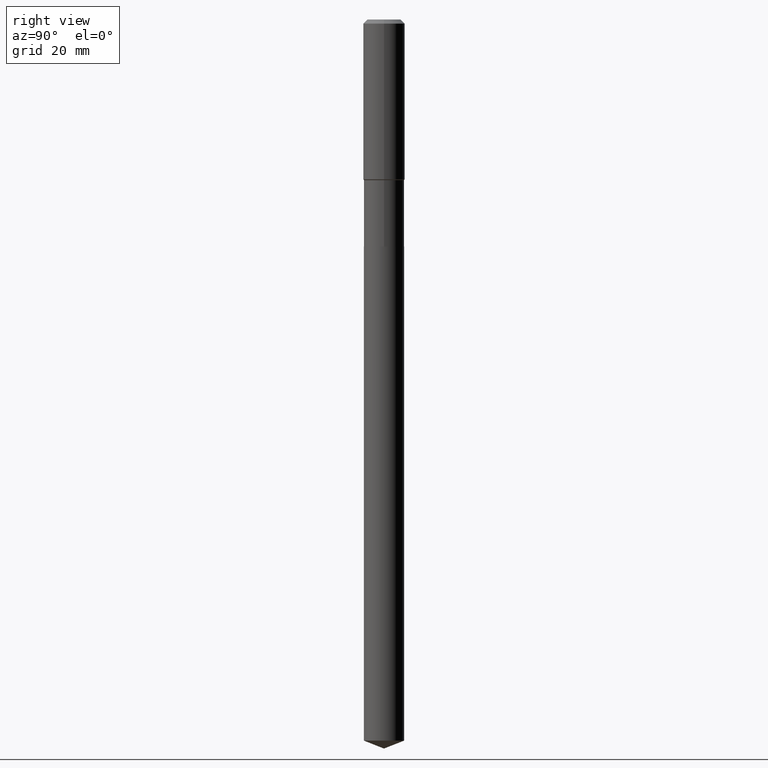
[diagram: clean part render]
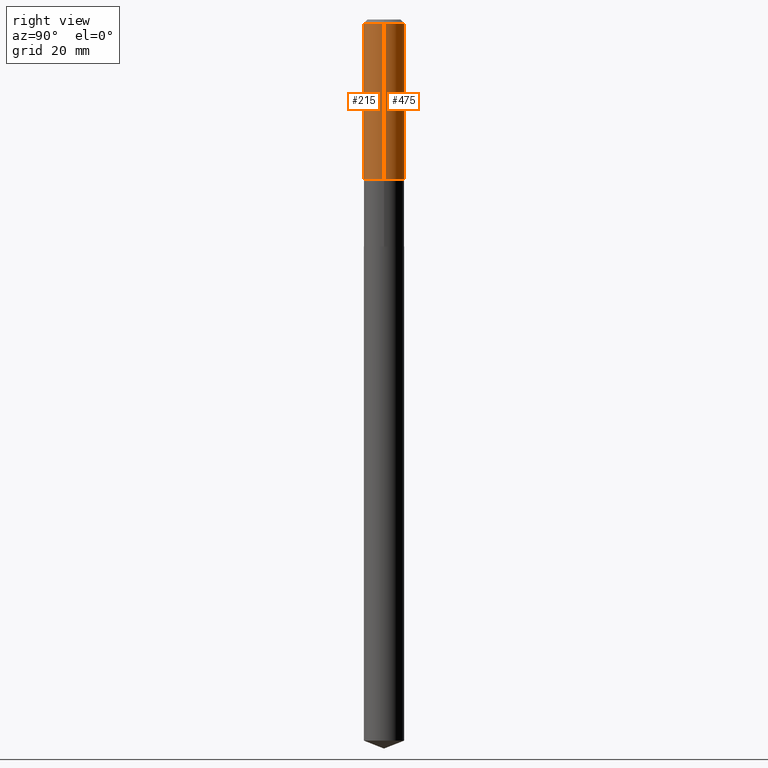
[diagram: same view with one multi-face feature highlighted, each face labeled with its STEP entity id]
A machine part, right view. The highlighted faces form ONE feature: a constant-radius fillet chain: 2 tangent blend faces with common blend radius 5.9995 mm. The faces share edges in the B-rep.
Their STEP definitions:
[1] entity #475 (Cylinder):
#15 = CARTESIAN_POINT ( 'NONE',  ( 0.000000000000000000, 0.000000000000000000, 0.000000000000000000 ) ) ;
#37 = ORIENTED_EDGE ( 'NONE', *, *, #259, .F. ) ;
#40 = FACE_OUTER_BOUND ( 'NONE', #300, .T. ) ;
#42 = CARTESIAN_POINT ( 'NONE',  ( -0.2362000000000001321, 1.678301941865357577E-15, -1.161852468318209457E-29 ) ) ;
#51 = DIRECTION ( 'NONE',  ( 1.000000000000000000, -6.982962677686266711E-15, 4.876176775795936353E-29 ) ) ;
#52 = CYLINDRICAL_SURFACE ( 'NONE', #213, 0.2362000000000001321 ) ;
#60 = EDGE_CURVE ( 'NONE', #362, #296, #121, .T. ) ;
#74 = ORIENTED_EDGE ( 'NONE', *, *, #350, .T. ) ;
#113 = CARTESIAN_POINT ( 'NONE',  ( -0.2362000000000000210, -1.570329412454553848E-15, -0.04724000000000030952 ) ) ;
#116 = CARTESIAN_POINT ( 'NONE',  ( -0.2362000000000002153, -4.654023188327512386E-15, -1.813649999999999984 ) ) ;
#117 = DIRECTION ( 'NONE',  ( 1.000000000000000000, -6.982962677686267499E-15, 0.000000000000000000 ) ) ;
#119 = CARTESIAN_POINT ( 'NONE',  ( 0.2362000000000002153, -7.981700914662367672E-15, -1.813649999999999984 ) ) ;
#121 = LINE ( 'NONE', #274, #127 ) ;
#124 = DIRECTION ( 'NONE',  ( 1.000000000000000000, -6.982962677686266711E-15, 0.000000000000000000 ) ) ;
#127 = VECTOR ( 'NONE', #235, 39.37007874015748143 ) ;
#179 = VECTOR ( 'NONE', #218, 39.37007874015748143 ) ;
#189 = ORIENTED_EDGE ( 'NONE', *, *, #60, .F. ) ;
#191 = CARTESIAN_POINT ( 'NONE',  ( 4.435224500337672740E-29, -6.332325130192871147E-15, -1.813649999999999984 ) ) ;
#213 = AXIS2_PLACEMENT_3D ( 'NONE', #15, #423, #51 ) ;
#218 = DIRECTION ( 'NONE',  ( -2.445468806185136877E-29, 3.491481338843145188E-15, 1.000000000000000000 ) ) ;
#235 = DIRECTION ( 'NONE',  ( -2.445468806185136877E-29, 3.491481338843145188E-15, 1.000000000000000000 ) ) ;
#259 = EDGE_CURVE ( 'NONE', #296, #277, #438, .T. ) ;
#274 = CARTESIAN_POINT ( 'NONE',  ( 0.2362000000000001321, -1.649375784469497117E-15, 1.151752954443000789E-29 ) ) ;
#277 = VERTEX_POINT ( 'NONE', #113 ) ;
#296 = VERTEX_POINT ( 'NONE', #305 ) ;
#300 = EDGE_LOOP ( 'NONE', ( #74, #311, #37, #189 ) ) ;
#304 = AXIS2_PLACEMENT_3D ( 'NONE', #191, #345, #124 ) ;
#305 = CARTESIAN_POINT ( 'NONE',  ( 0.2362000000000000210, -1.814313362916447834E-15, -0.04724000000000030952 ) ) ;
#311 = ORIENTED_EDGE ( 'NONE', *, *, #333, .T. ) ;
#333 = EDGE_CURVE ( 'NONE', #415, #277, #379, .T. ) ;
#345 = DIRECTION ( 'NONE',  ( -2.445468806185136597E-29, 3.491481338843145583E-15, 1.000000000000000000 ) ) ;
#350 = EDGE_CURVE ( 'NONE', #362, #415, #394, .T. ) ;
#362 = VERTEX_POINT ( 'NONE', #119 ) ;
#379 = LINE ( 'NONE', #42, #179 ) ;
#394 = CIRCLE ( 'NONE', #304, 0.2362000000000002153 ) ;
#412 = CARTESIAN_POINT ( 'NONE',  ( 1.155239464041866207E-30, -1.649375784469512845E-16, -0.04724000000000030952 ) ) ;
#415 = VERTEX_POINT ( 'NONE', #116 ) ;
#418 = AXIS2_PLACEMENT_3D ( 'NONE', #412, #446, #117 ) ;
#423 = DIRECTION ( 'NONE',  ( -2.445468806185136597E-29, 3.491481338843145583E-15, 1.000000000000000000 ) ) ;
#438 = CIRCLE ( 'NONE', #418, 0.2362000000000000210 ) ;
#446 = DIRECTION ( 'NONE',  ( -2.445468806185136597E-29, 3.491481338843145583E-15, 1.000000000000000000 ) ) ;
#475 = ADVANCED_FACE ( 'NONE', ( #40 ), #52, .T. ) ;
[2] entity #215 (Cylinder):
#3 = DIRECTION ( 'NONE',  ( 1.000000000000000000, -6.982962677686266711E-15, 4.876176775795936353E-29 ) ) ;
#24 = EDGE_LOOP ( 'NONE', ( #327, #99, #385, #386 ) ) ;
#25 = AXIS2_PLACEMENT_3D ( 'NONE', #450, #335, #442 ) ;
#42 = CARTESIAN_POINT ( 'NONE',  ( -0.2362000000000001321, 1.678301941865357577E-15, -1.161852468318209457E-29 ) ) ;
#60 = EDGE_CURVE ( 'NONE', #362, #296, #121, .T. ) ;
#99 = ORIENTED_EDGE ( 'NONE', *, *, #109, .T. ) ;
#103 = AXIS2_PLACEMENT_3D ( 'NONE', #257, #292, #339 ) ;
#109 = EDGE_CURVE ( 'NONE', #415, #362, #275, .T. ) ;
#113 = CARTESIAN_POINT ( 'NONE',  ( -0.2362000000000000210, -1.570329412454553848E-15, -0.04724000000000030952 ) ) ;
#116 = CARTESIAN_POINT ( 'NONE',  ( -0.2362000000000002153, -4.654023188327512386E-15, -1.813649999999999984 ) ) ;
#119 = CARTESIAN_POINT ( 'NONE',  ( 0.2362000000000002153, -7.981700914662367672E-15, -1.813649999999999984 ) ) ;
#121 = LINE ( 'NONE', #274, #127 ) ;
#127 = VECTOR ( 'NONE', #235, 39.37007874015748143 ) ;
#154 = EDGE_CURVE ( 'NONE', #277, #296, #478, .T. ) ;
#179 = VECTOR ( 'NONE', #218, 39.37007874015748143 ) ;
#182 = DIRECTION ( 'NONE',  ( -2.445468806185136597E-29, 3.491481338843145583E-15, 1.000000000000000000 ) ) ;
#186 = AXIS2_PLACEMENT_3D ( 'NONE', #295, #182, #3 ) ;
#215 = ADVANCED_FACE ( 'NONE', ( #444 ), #225, .T. ) ;
#218 = DIRECTION ( 'NONE',  ( -2.445468806185136877E-29, 3.491481338843145188E-15, 1.000000000000000000 ) ) ;
#225 = CYLINDRICAL_SURFACE ( 'NONE', #186, 0.2362000000000001321 ) ;
#235 = DIRECTION ( 'NONE',  ( -2.445468806185136877E-29, 3.491481338843145188E-15, 1.000000000000000000 ) ) ;
#257 = CARTESIAN_POINT ( 'NONE',  ( 1.155239464041866207E-30, -1.649375784469512845E-16, -0.04724000000000030952 ) ) ;
#274 = CARTESIAN_POINT ( 'NONE',  ( 0.2362000000000001321, -1.649375784469497117E-15, 1.151752954443000789E-29 ) ) ;
#275 = CIRCLE ( 'NONE', #25, 0.2362000000000002153 ) ;
#277 = VERTEX_POINT ( 'NONE', #113 ) ;
#292 = DIRECTION ( 'NONE',  ( -2.445468806185136597E-29, 3.491481338843145583E-15, 1.000000000000000000 ) ) ;
#295 = CARTESIAN_POINT ( 'NONE',  ( 0.000000000000000000, 0.000000000000000000, 0.000000000000000000 ) ) ;
#296 = VERTEX_POINT ( 'NONE', #305 ) ;
#305 = CARTESIAN_POINT ( 'NONE',  ( 0.2362000000000000210, -1.814313362916447834E-15, -0.04724000000000030952 ) ) ;
#327 = ORIENTED_EDGE ( 'NONE', *, *, #333, .F. ) ;
#333 = EDGE_CURVE ( 'NONE', #415, #277, #379, .T. ) ;
#335 = DIRECTION ( 'NONE',  ( -2.445468806185136597E-29, 3.491481338843145583E-15, 1.000000000000000000 ) ) ;
#339 = DIRECTION ( 'NONE',  ( 1.000000000000000000, -6.982962677686267499E-15, 0.000000000000000000 ) ) ;
#362 = VERTEX_POINT ( 'NONE', #119 ) ;
#379 = LINE ( 'NONE', #42, #179 ) ;
#385 = ORIENTED_EDGE ( 'NONE', *, *, #60, .T. ) ;
#386 = ORIENTED_EDGE ( 'NONE', *, *, #154, .F. ) ;
#415 = VERTEX_POINT ( 'NONE', #116 ) ;
#442 = DIRECTION ( 'NONE',  ( 1.000000000000000000, -6.982962677686266711E-15, 0.000000000000000000 ) ) ;
#444 = FACE_OUTER_BOUND ( 'NONE', #24, .T. ) ;
#450 = CARTESIAN_POINT ( 'NONE',  ( 4.435224500337672740E-29, -6.332325130192871147E-15, -1.813649999999999984 ) ) ;
#478 = CIRCLE ( 'NONE', #103, 0.2362000000000000210 ) ;